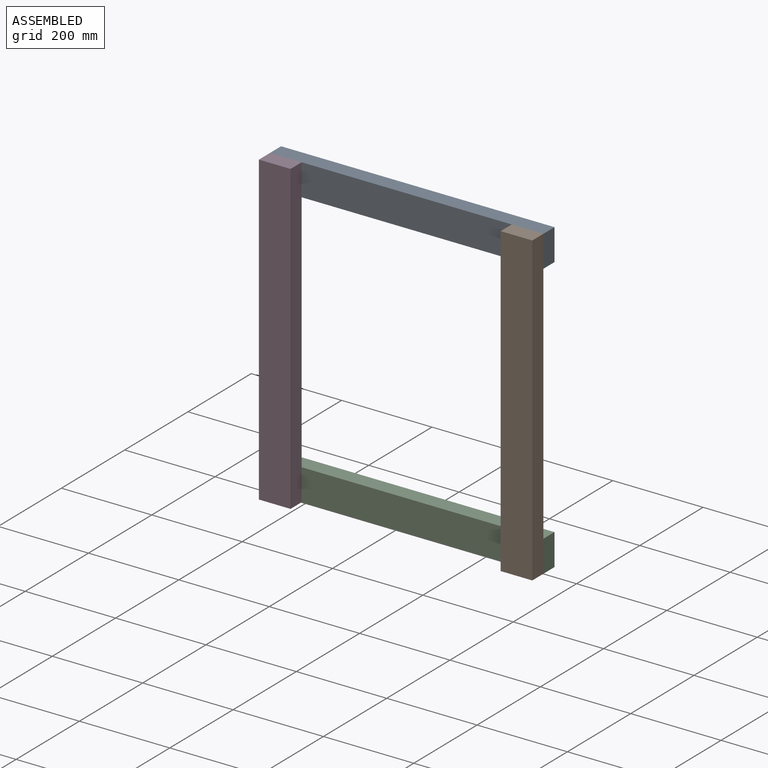
[diagram: assembled view]
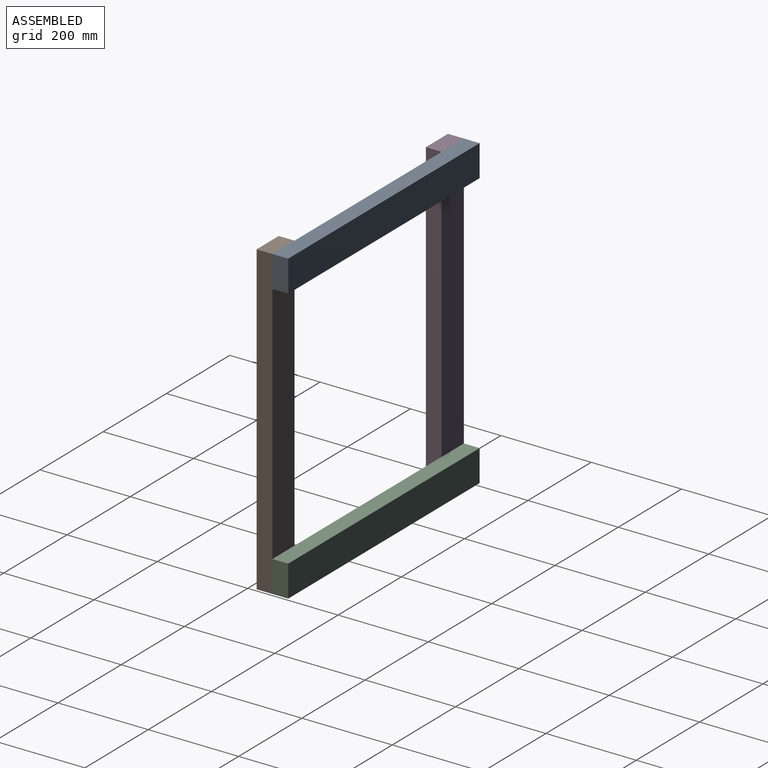
[diagram: assembled view, second angle]
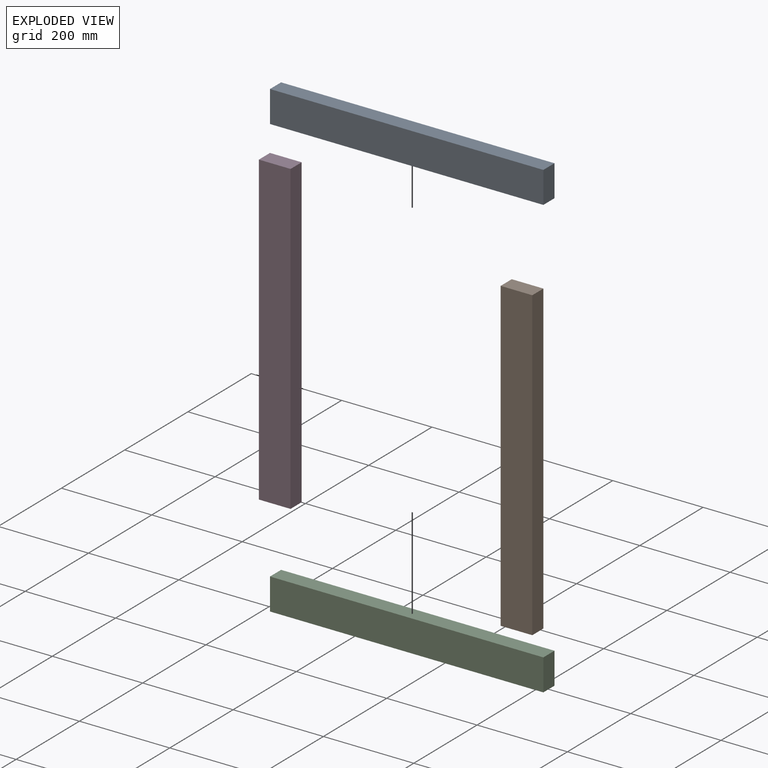
[diagram: exploded view]
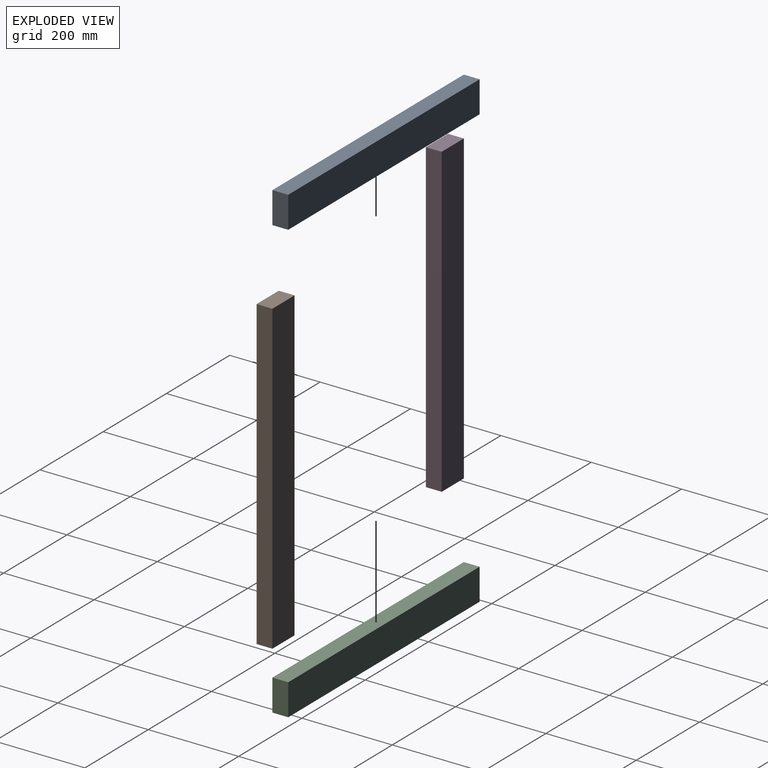
[diagram: exploded view, second angle]
ASSEMBLY  parts=4 mates=4
PART A: 6 faces, bbox 70x35x605 mm
  f0: plane 605x70mm, normal (0,-1,0), area 42350mm2, adj f1,f3,f4,f5
  f1: plane 605x35mm, normal (1,0,0), area 21175mm2, adj f0,f2,f4,f5
  f2: plane 605x70mm, normal (0,1,0), area 42350mm2, adj f1,f3,f4,f5
  f3: plane 605x35mm, normal (-1,0,0), area 21175mm2, adj f0,f2,f4,f5
  f4: plane 70x35mm, normal (0,0,1), area 2450mm2, adj f0,f1,f2,f3
  f5: plane 70x35mm, normal (0,0,-1), area 2450mm2, adj f0,f1,f2,f3
PART B: 6 faces, bbox 70x35x680 mm
  f0: plane 680x35mm, normal (-1,0,0), area 23800mm2, adj f1,f3,f4,f5
  f1: plane 680x70mm, normal (0,-1,0), area 47600mm2, adj f0,f2,f4,f5
  f2: plane 680x35mm, normal (1,0,0), area 23800mm2, adj f1,f3,f4,f5
  f3: plane 680x70mm, normal (0,1,0), area 47600mm2, adj f0,f2,f4,f5
  f4: plane 70x35mm, normal (0,0,1), area 2450mm2, adj f0,f1,f2,f3
  f5: plane 70x35mm, normal (0,0,-1), area 2450mm2, adj f0,f1,f2,f3
PART C: same geometry as A
PART D: same geometry as B
PLACE A rot(axis=(-0.71,0,0.71),180deg) t=(35.16,-188.03,438.82)mm
PLACE B t=(-34.84,-275.56,-150.49)mm
PLACE C rot(axis=(0,-1,0),90deg) t=(35.16,-258.08,-59.8)mm
PLACE D t=(-569.84,-275.56,-150.49)mm
MATE fastened A.f3 <-> B.f4  axis (0,0,1) through (35.16,-240.56,529.51)mm
MATE fastened D.f3 <-> C.f0  axis (0,1,0) through (-569.84,-240.56,-150.49)mm
MATE fastened C.f3 <-> B.f5  axis (0,0,-1) through (35.16,-240.56,-150.49)mm
MATE fastened A.f4 <-> D.f0  axis (-1,0,0) through (-569.84,-240.56,529.51)mm
